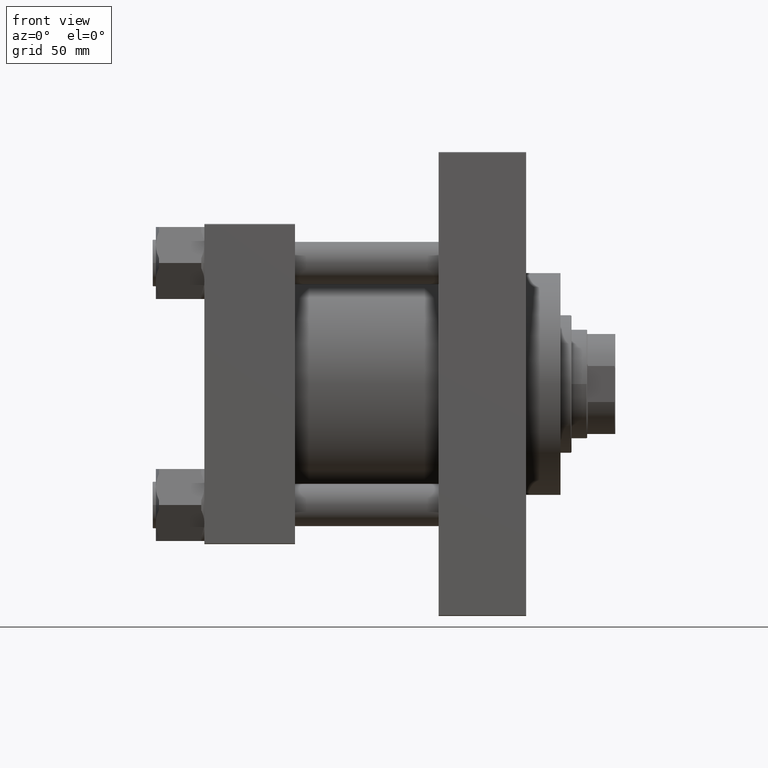
[diagram: clean part render]
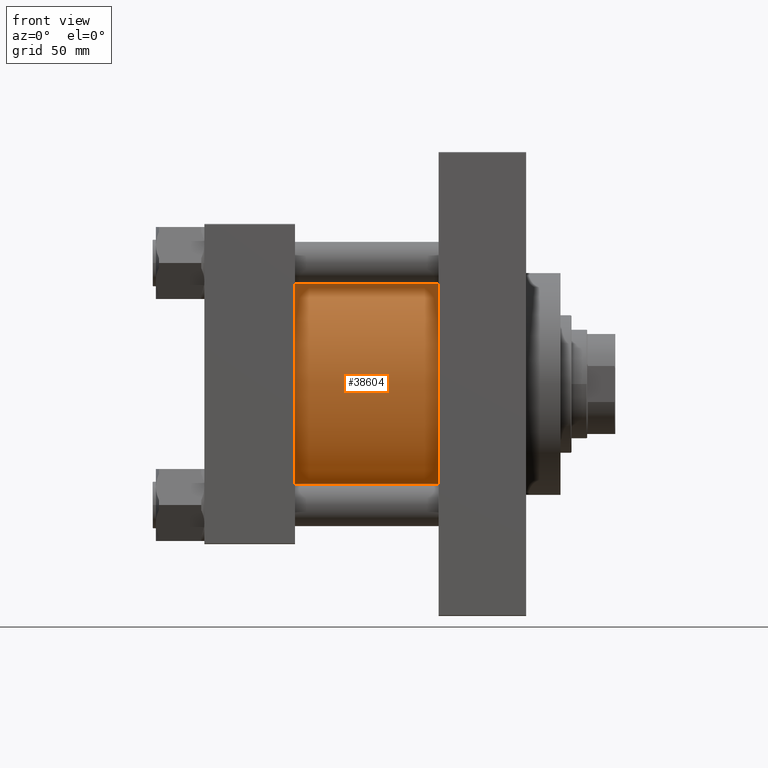
[diagram: same view with one face highlighted and labeled with its STEP entity id]
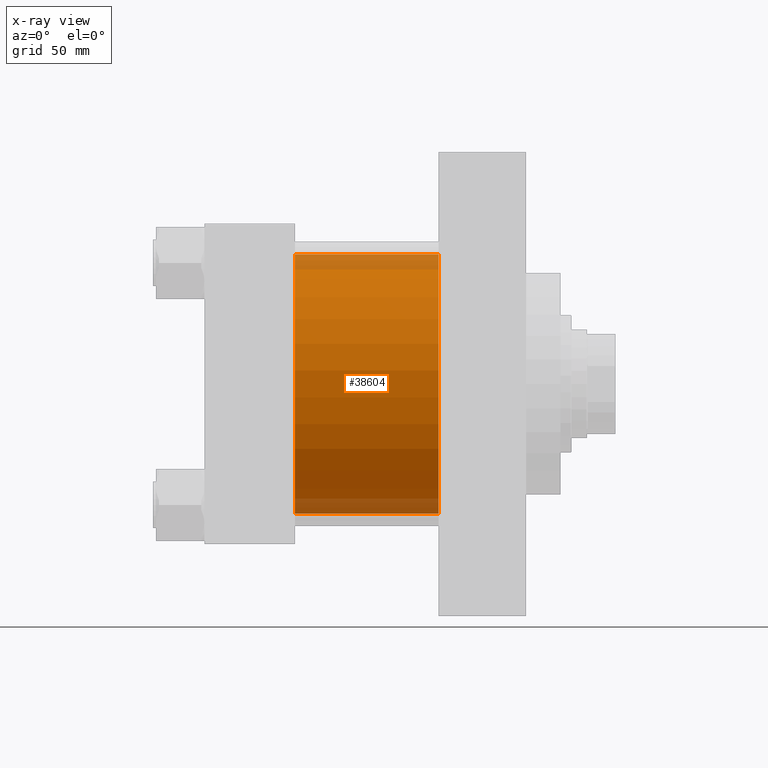
[diagram: x-ray of the same camera — body ghosted, the highlighted face saturated]
A machine part, front view. The second image highlights one B-rep face of the part: STEP entity #38604.
The next image is the same camera in x-ray: the body ghosted, the highlighted face saturated — about 12% of this face is hidden behind the body in this view.
In plain terms, the highlighted cylindrical surface (partial cylindrical patch) has radius 83 mm, axis along (-1, -0, -0).
Its self-contained STEP definition (entity closure, byte-faithful):
#120 = DIRECTION ( 'NONE',  ( -1.000000000000000000, -0.000000000000000000, -0.000000000000000000 ) ) ;
#2074 = CARTESIAN_POINT ( 'NONE',  ( 150.0000000000000000, -2.602085213965210642E-15, 83.00000000000000000 ) ) ;
#3604 = CARTESIAN_POINT ( 'NONE',  ( 150.0000000000000000, -2.602085213965210642E-15, 83.00000000000000000 ) ) ;
#3902 = DIRECTION ( 'NONE',  ( 1.000000000000000000, 0.000000000000000000, 0.000000000000000000 ) ) ;
#5663 = CIRCLE ( 'NONE', #6428, 83.00000000000000000 ) ;
#5820 = DIRECTION ( 'NONE',  ( 0.000000000000000000, 0.000000000000000000, 1.000000000000000000 ) ) ;
#6428 = AXIS2_PLACEMENT_3D ( 'NONE', #23151, #3902, #26781 ) ;
#7509 = VECTOR ( 'NONE', #20869, 1000.000000000000000 ) ;
#8484 = CIRCLE ( 'NONE', #36969, 83.00000000000000000 ) ;
#9434 = CYLINDRICAL_SURFACE ( 'NONE', #42753, 83.00000000000000000 ) ;
#10034 = VERTEX_POINT ( 'NONE', #17755 ) ;
#14067 = VERTEX_POINT ( 'NONE', #20597 ) ;
#15518 = EDGE_CURVE ( 'NONE', #14067, #10034, #8484, .T. ) ;
#16215 = VERTEX_POINT ( 'NONE', #3604 ) ;
#16518 = DIRECTION ( 'NONE',  ( 1.000000000000000000, -0.000000000000000000, -0.000000000000000000 ) ) ;
#17448 = ORIENTED_EDGE ( 'NONE', *, *, #47259, .T. ) ;
#17755 = CARTESIAN_POINT ( 'NONE',  ( 57.99999999999999289, 7.562483218957820855E-15, -83.00000000000000000 ) ) ;
#19646 = DIRECTION ( 'NONE',  ( 0.000000000000000000, 0.000000000000000000, 1.000000000000000000 ) ) ;
#20099 = CARTESIAN_POINT ( 'NONE',  ( 150.0000000000000000, 7.562483218957820855E-15, -83.00000000000000000 ) ) ;
#20597 = CARTESIAN_POINT ( 'NONE',  ( 57.99999999999999289, -2.602085213965210642E-15, 83.00000000000000000 ) ) ;
#20869 = DIRECTION ( 'NONE',  ( -1.000000000000000000, -0.000000000000000000, -0.000000000000000000 ) ) ;
#23151 = CARTESIAN_POINT ( 'NONE',  ( 150.0000000000000000, -2.602085213965210642E-15, 0.000000000000000000 ) ) ;
#24129 = CARTESIAN_POINT ( 'NONE',  ( 150.0000000000000000, -2.602085213965210642E-15, 0.000000000000000000 ) ) ;
#25193 = CARTESIAN_POINT ( 'NONE',  ( 150.0000000000000000, 7.562483218957820855E-15, -83.00000000000000000 ) ) ;
#26456 = VECTOR ( 'NONE', #120, 1000.000000000000000 ) ;
#26781 = DIRECTION ( 'NONE',  ( 0.000000000000000000, 0.000000000000000000, -1.000000000000000000 ) ) ;
#27827 = ORIENTED_EDGE ( 'NONE', *, *, #15518, .T. ) ;
#29254 = EDGE_CURVE ( 'NONE', #16215, #35974, #5663, .T. ) ;
#31705 = CARTESIAN_POINT ( 'NONE',  ( 57.99999999999999289, -2.602085213965210642E-15, 0.000000000000000000 ) ) ;
#31729 = LINE ( 'NONE', #2074, #7509 ) ;
#33990 = EDGE_CURVE ( 'NONE', #35974, #10034, #40385, .T. ) ;
#35974 = VERTEX_POINT ( 'NONE', #20099 ) ;
#36969 = AXIS2_PLACEMENT_3D ( 'NONE', #31705, #16518, #19646 ) ;
#38072 = ORIENTED_EDGE ( 'NONE', *, *, #29254, .F. ) ;
#38604 = ADVANCED_FACE ( 'NONE', ( #42454 ), #9434, .T. ) ;
#38862 = DIRECTION ( 'NONE',  ( -1.000000000000000000, -0.000000000000000000, -0.000000000000000000 ) ) ;
#40385 = LINE ( 'NONE', #25193, #26456 ) ;
#42454 = FACE_OUTER_BOUND ( 'NONE', #47201, .T. ) ;
#42753 = AXIS2_PLACEMENT_3D ( 'NONE', #24129, #38862, #5820 ) ;
#44614 = ORIENTED_EDGE ( 'NONE', *, *, #33990, .F. ) ;
#47201 = EDGE_LOOP ( 'NONE', ( #44614, #38072, #17448, #27827 ) ) ;
#47259 = EDGE_CURVE ( 'NONE', #16215, #14067, #31729, .T. ) ;